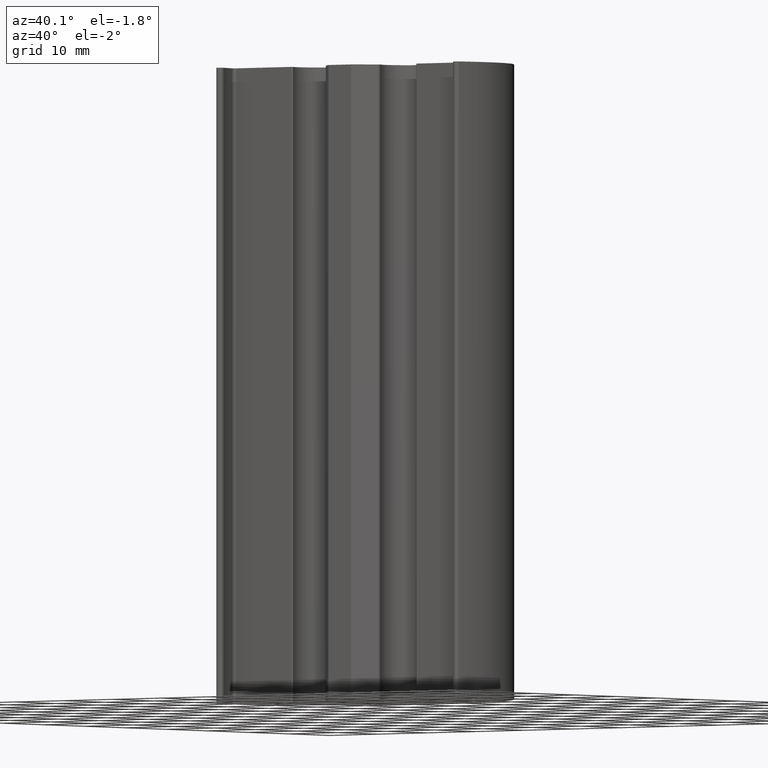
[diagram: clean part render]
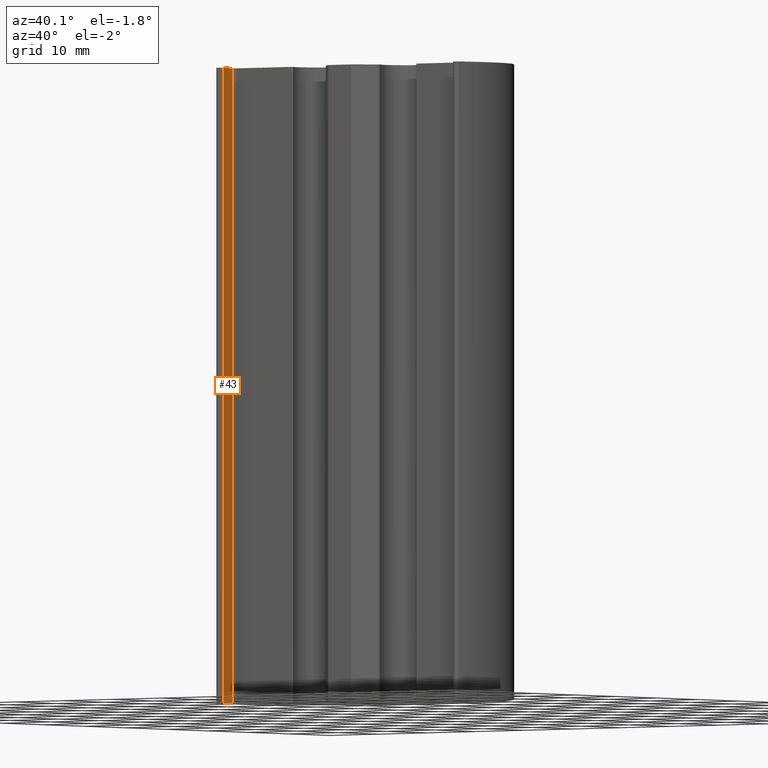
[diagram: same view with one face highlighted and labeled with its STEP entity id]
A machine part, auxiliary view. The second image highlights one B-rep face of the part: STEP entity #43.
In plain terms, the highlighted cylindrical surface (partial cylindrical patch) has radius 15.8 mm, axis along (0, 0, -1).
Its self-contained STEP definition (entity closure, byte-faithful):
#2=CARTESIAN_POINT('',(-8.999999999991815,-16.999999999983800,100.0));
#3=DIRECTION('',(0.0,0.0,-1.0));
#4=DIRECTION('',(-0.935399099936910,-0.353593727089747,0.0));
#5=AXIS2_PLACEMENT_3D('',#2,#3,#4);
#6=CYLINDRICAL_SURFACE('',#5,15.799999999999979);
#7=CARTESIAN_POINT('',(-23.779305778994967,-22.586780888001783,100.0));
#8=VERTEX_POINT('',#7);
#9=CARTESIAN_POINT('',(-24.582226271284526,-19.614234960778390,100.0));
#10=VERTEX_POINT('',#9);
#11=CARTESIAN_POINT('',(-8.999999999991816,-16.999999999983803,100.000000000000060));
#12=DIRECTION('',(0.0,0.0,-1.000000000000000));
#13=DIRECTION('',(-0.986216852613482,-0.165457908910871,0.0));
#14=AXIS2_PLACEMENT_3D('',#11,#12,#13);
#15=CIRCLE('',#14,15.799999999999979);
#16=EDGE_CURVE('',#8,#10,#15,.T.);
#17=ORIENTED_EDGE('',*,*,#16,.T.);
#18=CARTESIAN_POINT('',(-24.582226271284526,-19.614234960778390,200.0));
#19=VERTEX_POINT('',#18);
#20=CARTESIAN_POINT('',(-24.582226271284526,-19.614234960778390,100.0));
#21=DIRECTION('',(0.0,0.0,1.0));
#22=VECTOR('',#21,100.0);
#23=LINE('',#20,#22);
#24=EDGE_CURVE('',#10,#19,#23,.T.);
#25=ORIENTED_EDGE('',*,*,#24,.T.);
#26=CARTESIAN_POINT('',(-23.779305778994967,-22.586780888001783,200.0));
#27=VERTEX_POINT('',#26);
#28=CARTESIAN_POINT('',(-8.999999999991816,-16.999999999983803,200.000000000000110));
#29=DIRECTION('',(0.0,0.0,-1.000000000000000));
#30=DIRECTION('',(-0.986216852613482,-0.165457908910871,0.0));
#31=AXIS2_PLACEMENT_3D('',#28,#29,#30);
#32=CIRCLE('',#31,15.799999999999979);
#33=EDGE_CURVE('',#27,#19,#32,.T.);
#34=ORIENTED_EDGE('',*,*,#33,.F.);
#35=CARTESIAN_POINT('',(-23.779305778994967,-22.586780888001783,100.0));
#36=DIRECTION('',(0.0,0.0,1.0));
#37=VECTOR('',#36,100.0);
#38=LINE('',#35,#37);
#39=EDGE_CURVE('',#8,#27,#38,.T.);
#40=ORIENTED_EDGE('',*,*,#39,.F.);
#41=EDGE_LOOP('',(#17,#25,#34,#40));
#42=FACE_OUTER_BOUND('',#41,.T.);
#43=ADVANCED_FACE('',(#42),#6,.F.);